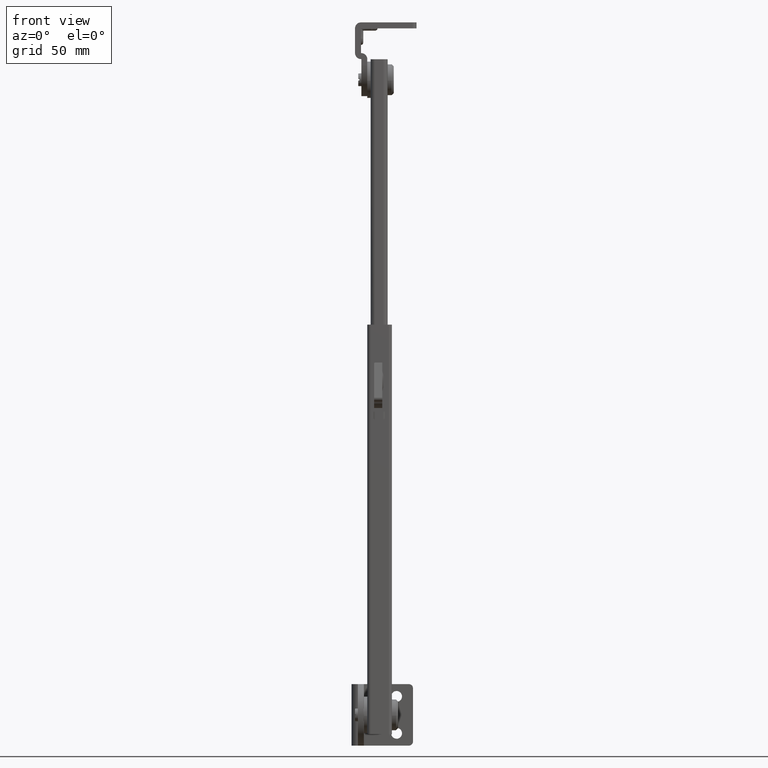
[diagram: clean part render]
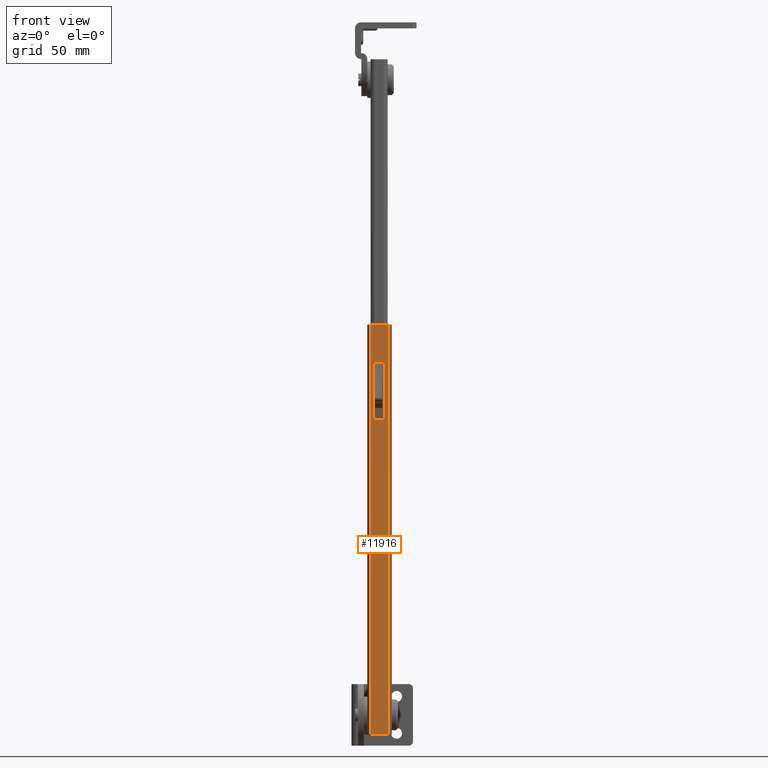
[diagram: same view with one face highlighted and labeled with its STEP entity id]
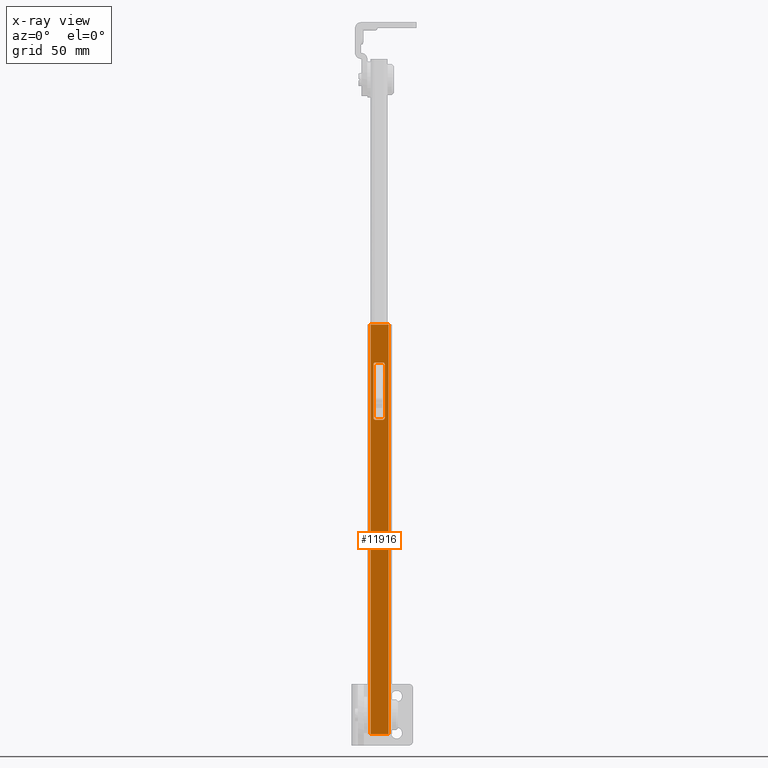
[diagram: x-ray of the same camera — body ghosted, the highlighted face saturated]
A machine part, front view. The second image highlights one B-rep face of the part: STEP entity #11916.
The next image is the same camera in x-ray: the body ghosted, the highlighted face saturated — about 0% of this face is hidden behind the body in this view.
In plain terms, the highlighted face is a freeform B-spline surface patch.
Its self-contained STEP definition (entity closure, byte-faithful):
#11045=CARTESIAN_POINT('',(-9.0,-12.500000000000000,145.000000157079600));
#11046=VERTEX_POINT('',#11045);
#11052=CARTESIAN_POINT('',(-8.0,-12.500000000000000,144.0));
#11053=VERTEX_POINT('',#11052);
#11054=CARTESIAN_POINT('',(-8.999999999999988,-12.500000000000000,145.000000157079600));
#11055=CARTESIAN_POINT('',(-9.000000065064494,-12.499999999999996,144.585786548698930));
#11056=CARTESIAN_POINT('',(-8.707106836722570,-12.500000000000000,144.292893274349500));
#11057=CARTESIAN_POINT('',(-8.414213608380646,-12.499999999999996,144.0));
#11058=CARTESIAN_POINT('',(-8.0,-12.500000000000000,144.0));
#11066=(BOUNDED_CURVE()B_SPLINE_CURVE(2,(#11054,#11055,#11056,#11057,#11058),.UNSPECIFIED.,.F.,.U.)B_SPLINE_CURVE_WITH_KNOTS((3,2,3),(0.0,0.500000000000000,1.0),.UNSPECIFIED.)CURVE()GEOMETRIC_REPRESENTATION_ITEM()RATIONAL_B_SPLINE_CURVE((1.0,0.923879517483346,1.0,0.923879517483346,1.0))REPRESENTATION_ITEM(''));
#11067=EDGE_CURVE('',#11046,#11053,#11066,.T.);
#11107=CARTESIAN_POINT('',(-4.500000052360081,-12.500000000000000,144.0));
#11108=VERTEX_POINT('',#11107);
#11109=CARTESIAN_POINT('',(-4.500000052360081,-12.500000000000000,144.0));
#11110=CARTESIAN_POINT('',(-8.0,-12.500000000000000,144.0));
#11111=QUASI_UNIFORM_CURVE('',1,(#11109,#11110),.UNSPECIFIED.,.F.,.U.);
#11112=EDGE_CURVE('',#11108,#11053,#11111,.T.);
#11137=CARTESIAN_POINT('',(-3.500000000000000,-12.500000000000000,145.0));
#11138=VERTEX_POINT('',#11137);
#11139=CARTESIAN_POINT('',(-4.500000052360081,-12.500000000000000,144.0));
#11140=CARTESIAN_POINT('',(-4.085786474651131,-12.500000000000000,143.999999978311820));
#11141=CARTESIAN_POINT('',(-3.792893237325666,-12.500000000000000,144.292893200301390));
#11142=CARTESIAN_POINT('',(-3.500000000000200,-12.500000000000000,144.585786422291050));
#11143=CARTESIAN_POINT('',(-3.500000000000200,-12.500000000000000,145.0));
#11151=(BOUNDED_CURVE()B_SPLINE_CURVE(2,(#11139,#11140,#11141,#11142,#11143),.UNSPECIFIED.,.F.,.U.)B_SPLINE_CURVE_WITH_KNOTS((3,2,3),(0.0,0.500000000000000,1.0),.UNSPECIFIED.)CURVE()GEOMETRIC_REPRESENTATION_ITEM()RATIONAL_B_SPLINE_CURVE((1.0,0.923879527501972,1.0,0.923879527501972,1.0))REPRESENTATION_ITEM(''));
#11152=EDGE_CURVE('',#11108,#11138,#11151,.T.);
#11192=CARTESIAN_POINT('',(-3.500000000000200,-12.500000000000000,171.0));
#11193=VERTEX_POINT('',#11192);
#11194=CARTESIAN_POINT('',(-3.500000000000200,-12.500000000000000,171.0));
#11195=CARTESIAN_POINT('',(-3.500000000000000,-12.500000000000000,145.0));
#11196=QUASI_UNIFORM_CURVE('',1,(#11194,#11195),.UNSPECIFIED.,.F.,.U.);
#11197=EDGE_CURVE('',#11193,#11138,#11196,.T.);
#11222=CARTESIAN_POINT('',(-4.500000000000200,-12.500000000000000,172.0));
#11223=VERTEX_POINT('',#11222);
#11224=CARTESIAN_POINT('',(-3.500000000000200,-12.500000000000000,171.0));
#11225=CARTESIAN_POINT('',(-3.500000000000200,-12.500000000000000,172.000000000000030));
#11226=CARTESIAN_POINT('',(-4.500000000000200,-12.500000000000000,172.0));
#11234=(BOUNDED_CURVE()B_SPLINE_CURVE(2,(#11224,#11225,#11226),.UNSPECIFIED.,.F.,.U.)CURVE()GEOMETRIC_REPRESENTATION_ITEM()QUASI_UNIFORM_CURVE()RATIONAL_B_SPLINE_CURVE((1.0,0.707106781186548,1.0))REPRESENTATION_ITEM(''));
#11235=EDGE_CURVE('',#11193,#11223,#11234,.T.);
#11273=CARTESIAN_POINT('',(-8.000000052359880,-12.500000000000000,172.0));
#11274=VERTEX_POINT('',#11273);
#11275=CARTESIAN_POINT('',(-8.000000052359880,-12.500000000000000,172.0));
#11276=CARTESIAN_POINT('',(-4.500000000000200,-12.500000000000000,172.0));
#11277=QUASI_UNIFORM_CURVE('',1,(#11275,#11276),.UNSPECIFIED.,.F.,.U.);
#11278=EDGE_CURVE('',#11274,#11223,#11277,.T.);
#11303=CARTESIAN_POINT('',(-9.0,-12.500000000000000,170.999999912733500));
#11304=VERTEX_POINT('',#11303);
#11305=CARTESIAN_POINT('',(-8.000000052359880,-12.500000000000000,172.0));
#11306=CARTESIAN_POINT('',(-8.414213624956886,-12.500000000000004,171.999999978311820));
#11307=CARTESIAN_POINT('',(-8.707106830551927,-12.500000000000000,171.707106731821200));
#11308=CARTESIAN_POINT('',(-9.000000036146965,-12.500000000000004,171.414213485330580));
#11309=CARTESIAN_POINT('',(-8.999999999999996,-12.500000000000000,170.999999912733500));
#11317=(BOUNDED_CURVE()B_SPLINE_CURVE(2,(#11305,#11306,#11307,#11308,#11309),.UNSPECIFIED.,.F.,.U.)B_SPLINE_CURVE_WITH_KNOTS((3,2,3),(0.0,0.500000000000000,1.0),.UNSPECIFIED.)CURVE()GEOMETRIC_REPRESENTATION_ITEM()RATIONAL_B_SPLINE_CURVE((1.0,0.923879529171740,1.0,0.923879529171740,1.0))REPRESENTATION_ITEM(''));
#11318=EDGE_CURVE('',#11274,#11304,#11317,.T.);
#11356=CARTESIAN_POINT('',(-9.0,-12.500000000000000,145.000000157079600));
#11357=CARTESIAN_POINT('',(-9.0,-12.500000000000000,170.999999912733500));
#11358=QUASI_UNIFORM_CURVE('',1,(#11356,#11357),.UNSPECIFIED.,.F.,.U.);
#11359=EDGE_CURVE('',#11046,#11304,#11358,.T.);
#11370=CARTESIAN_POINT('',(-1.597476178661950,-12.500000000000000,190.500000000000000));
#11371=VERTEX_POINT('',#11370);
#11372=CARTESIAN_POINT('',(-10.399994083775800,-12.500002000000000,190.500000000000000));
#11373=VERTEX_POINT('',#11372);
#11374=CARTESIAN_POINT('',(-1.597476178661950,-12.500000000000000,190.500000000000000));
#11375=CARTESIAN_POINT('',(-10.399994083775800,-12.500002000000000,190.500000000000000));
#11376=QUASI_UNIFORM_CURVE('',1,(#11374,#11375),.UNSPECIFIED.,.F.,.U.);
#11377=EDGE_CURVE('',#11371,#11373,#11376,.T.);
#11498=CARTESIAN_POINT('',(-1.597476178661950,-12.500000000000000,-9.500000000000000));
#11499=VERTEX_POINT('',#11498);
#11500=CARTESIAN_POINT('',(-10.399994083775800,-12.500002000000000,-9.500000000000000));
#11501=VERTEX_POINT('',#11500);
#11502=CARTESIAN_POINT('',(-1.597476178661950,-12.500000000000000,-9.500000000000000));
#11503=CARTESIAN_POINT('',(-10.399994083775800,-12.500002000000000,-9.500000000000000));
#11504=QUASI_UNIFORM_CURVE('',1,(#11502,#11503),.UNSPECIFIED.,.F.,.U.);
#11505=EDGE_CURVE('',#11499,#11501,#11504,.T.);
#11636=CARTESIAN_POINT('',(-1.597476178661950,-12.500000000000000,-9.500000000000000));
#11637=CARTESIAN_POINT('',(-1.597476178661950,-12.500000000000000,190.500000000000000));
#11638=QUASI_UNIFORM_CURVE('',1,(#11636,#11637),.UNSPECIFIED.,.F.,.U.);
#11639=EDGE_CURVE('',#11499,#11371,#11638,.T.);
#11729=CARTESIAN_POINT('',(-10.399994083775800,-12.500002000000000,-9.500000000000000));
#11730=CARTESIAN_POINT('',(-10.399994083775800,-12.500002000000000,190.500000000000000));
#11731=QUASI_UNIFORM_CURVE('',1,(#11729,#11730),.UNSPECIFIED.,.F.,.U.);
#11732=EDGE_CURVE('',#11501,#11373,#11731,.T.);
#11895=CARTESIAN_POINT('',(-10.839679670811771,-12.500000000000000,-19.489999612361199));
#11896=CARTESIAN_POINT('',(-10.839679670811771,-12.500000000000000,200.490004976779290));
#11897=CARTESIAN_POINT('',(-1.157790198122767,-12.500000000000000,-19.489999612361199));
#11898=CARTESIAN_POINT('',(-1.157790198122767,-12.500000000000000,200.490004976779290));
#11899=B_SPLINE_SURFACE_WITH_KNOTS('',1,1,((#11895,#11897),(#11896,#11898)),.UNSPECIFIED.,.F.,.F.,.U.,(2,2),(2,2),(0.0,219.980004589140490),(0.0,9.681889472689006),.UNSPECIFIED.);
#11900=ORIENTED_EDGE('',*,*,#11377,.T.);
#11901=ORIENTED_EDGE('',*,*,#11732,.F.);
#11902=ORIENTED_EDGE('',*,*,#11505,.F.);
#11903=ORIENTED_EDGE('',*,*,#11639,.T.);
#11904=EDGE_LOOP('',(#11900,#11901,#11902,#11903));
#11905=FACE_OUTER_BOUND('',#11904,.T.);
#11906=ORIENTED_EDGE('',*,*,#11359,.T.);
#11907=ORIENTED_EDGE('',*,*,#11318,.F.);
#11908=ORIENTED_EDGE('',*,*,#11278,.T.);
#11909=ORIENTED_EDGE('',*,*,#11235,.F.);
#11910=ORIENTED_EDGE('',*,*,#11197,.T.);
#11911=ORIENTED_EDGE('',*,*,#11152,.F.);
#11912=ORIENTED_EDGE('',*,*,#11112,.T.);
#11913=ORIENTED_EDGE('',*,*,#11067,.F.);
#11914=EDGE_LOOP('',(#11906,#11907,#11908,#11909,#11910,#11911,#11912,#11913));
#11915=FACE_BOUND('',#11914,.T.);
#11916=ADVANCED_FACE('',(#11905,#11915),#11899,.F.);